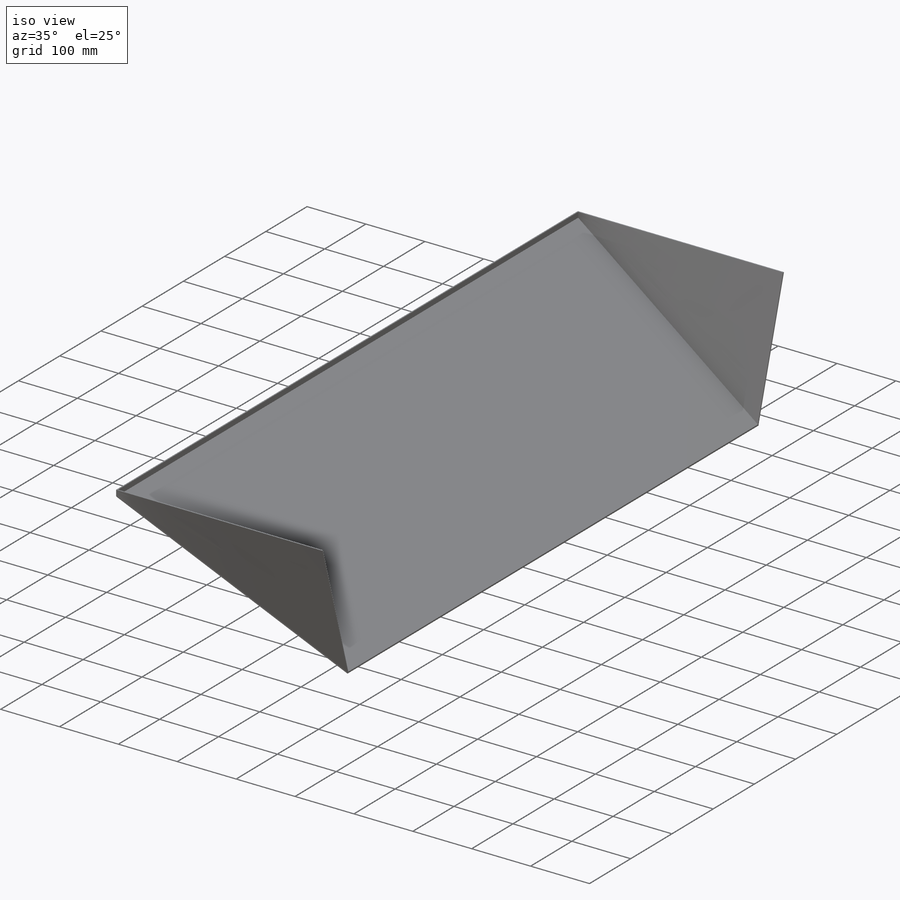
[diagram: iso view]
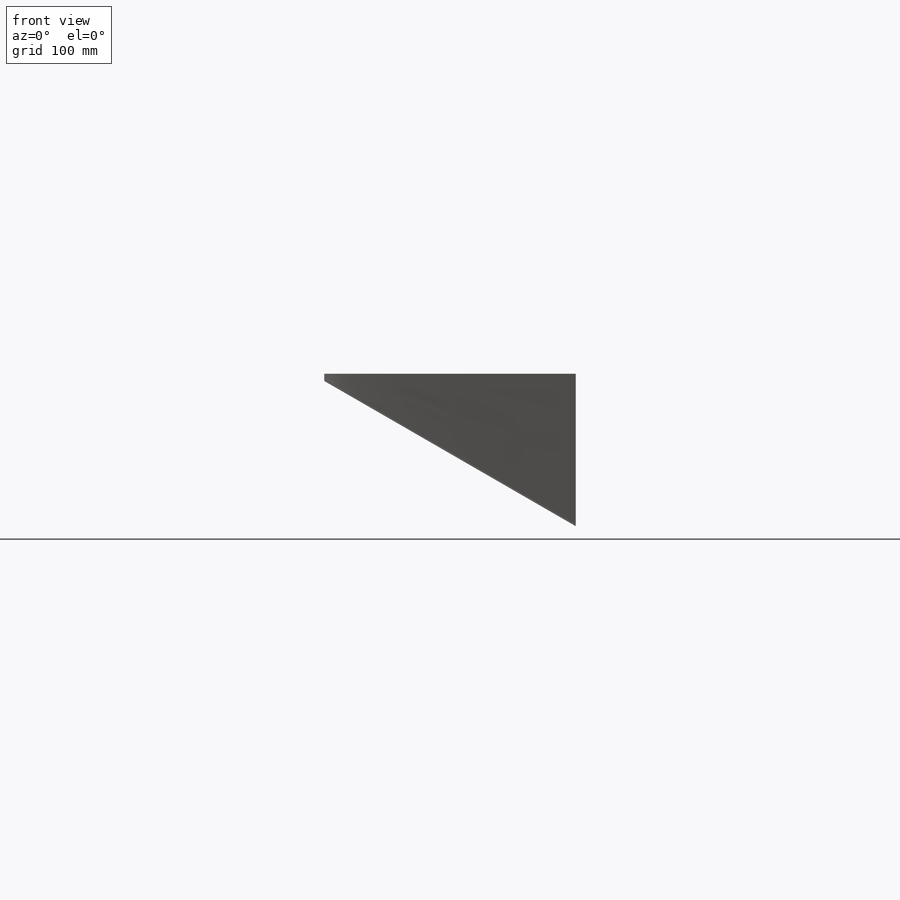
[diagram: front view]
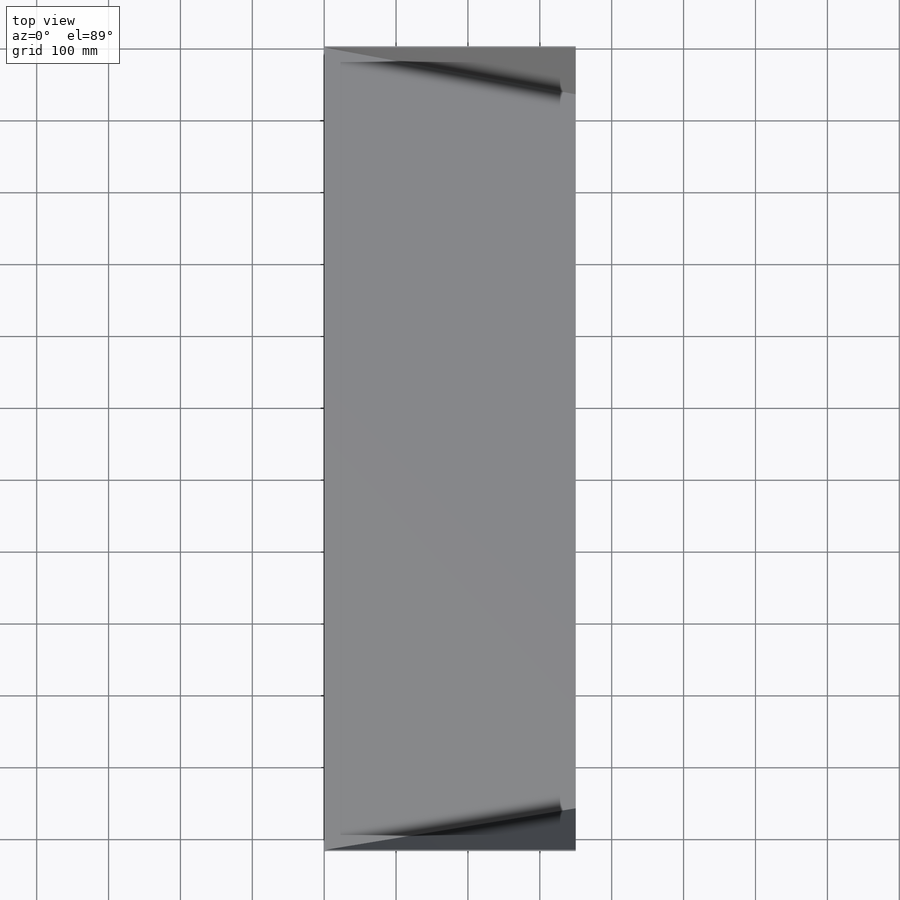
[diagram: top view]
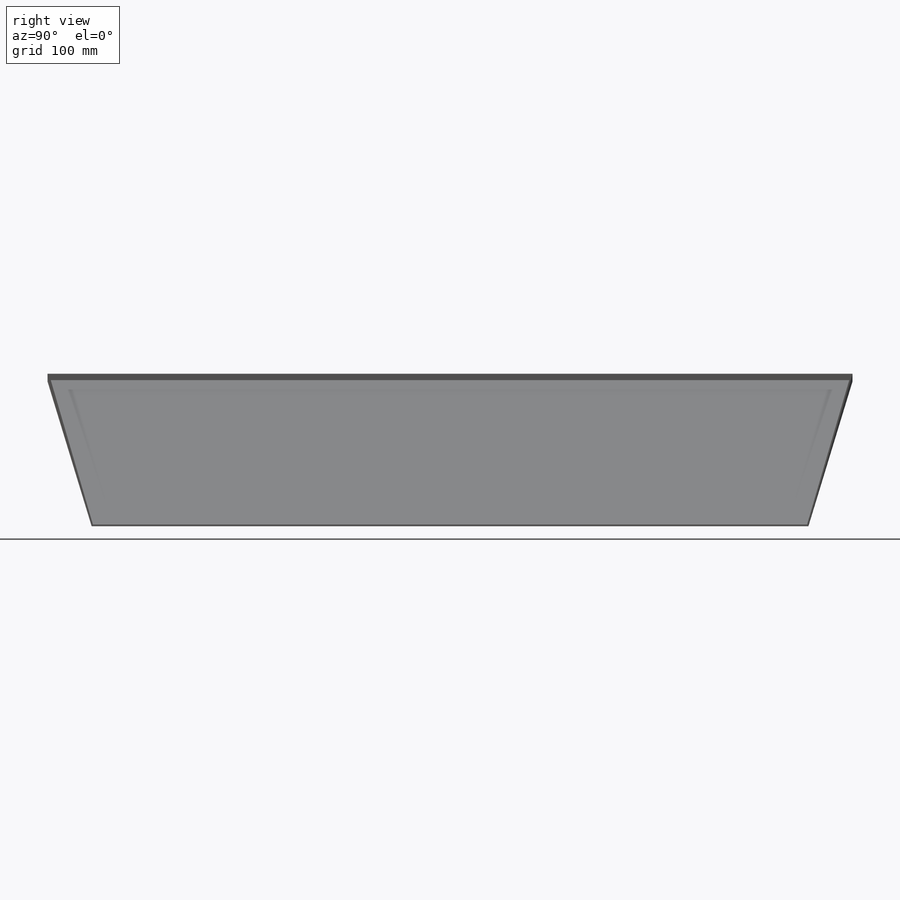
[diagram: right view]
SOLIDWORKS PART (.sldprt)
format: sldprt  version: not decoded by parser v0  size: 231,936 bytes
history: native  units: mm
features: sketch x5, plane x4, extrude x2, shell x2, material x1, mirror x1 (+8 scaffold rows collapsed)
feature tree (23):
  scaffold x8  (default folders/planes/origin — collapsed)
  material  "Materiał <nieokreślony>"
  plane  "Płaszczyzna przednia"
  plane  "Płaszczyzna górna"
  plane  "Płaszczyzna prawa"
  sketch  "Szkic1"  dims[c1.D1=350.0mm c1.D2=~131.070649mm c2.D2=30.0deg c2.D3=~115.019107mm c3.D3=0.0deg c4.D3=100.0mm c4.D4=800.0mm c4.D5=1000.0mm c4.D6=350.0mm c4.D7=650.0mm c5.D7=360.0deg c5.D8=0.0mm c5.D9=0.0mm c5.D2=10.0mm c5.D3=1000.0mm c6.D3=120.0deg c6.D4=500.0mm c6.D1=350.0mm c7.D4=0.0mm]
  extrude  "Dodanie-wyciągnięcie1"  Depth=1120mm
  sketch  "Szkic3"  dims[D1=30.0mm D2=30.0mm D3=30.0mm D4=30.0mm D5=0.0mm D6=0.0mm D7=0.0mm D8=0.0mm]
  extrude  "Dodanie-wyciągnięcie2"  Depth=5mm
  shell  "Skorupa3"  Thickness=2mm
  sketch  "Szkic5"  dims[c1.D1=980.0mm c1.D2=~1252.11774mm c2.D1=~475.773216mm]
  shell  "Wytnij-wyciągnięcie1"  Thickness=90mm
  sketch  "Szkic6"  dims[D1=2.0mm D2=348.0mm]
  sketch  "Szkic7"  dims[D1=2.0mm D2=~5.718888mm]
  plane  "Płaszczyzna1"
  mirror  "Lustro1"
decode coverage: 9 of 10 modeling features carry decoded parameters
note: ~ marks probable driven/reference dimensions
note: suppression state not decoded; provenance and decode notes live in map.json
